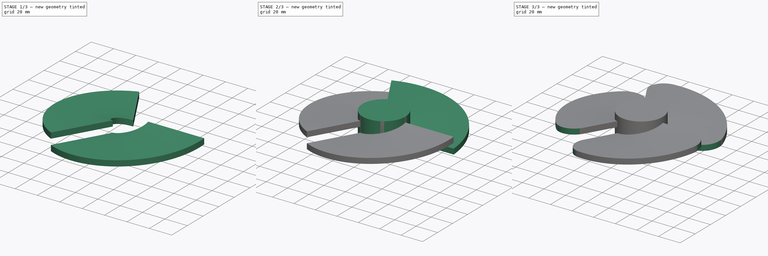
[diagram: build sequence overview — one tinted view per stage of 3, left to right]
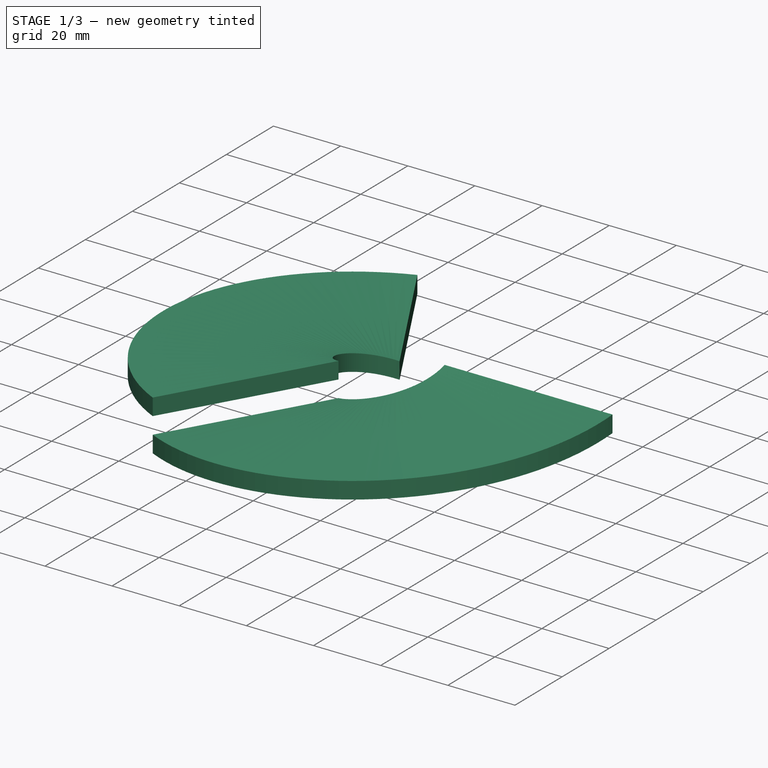
[diagram: stage 1 of 3 — iso view after this stage's code; geometry added in this stage tinted green]
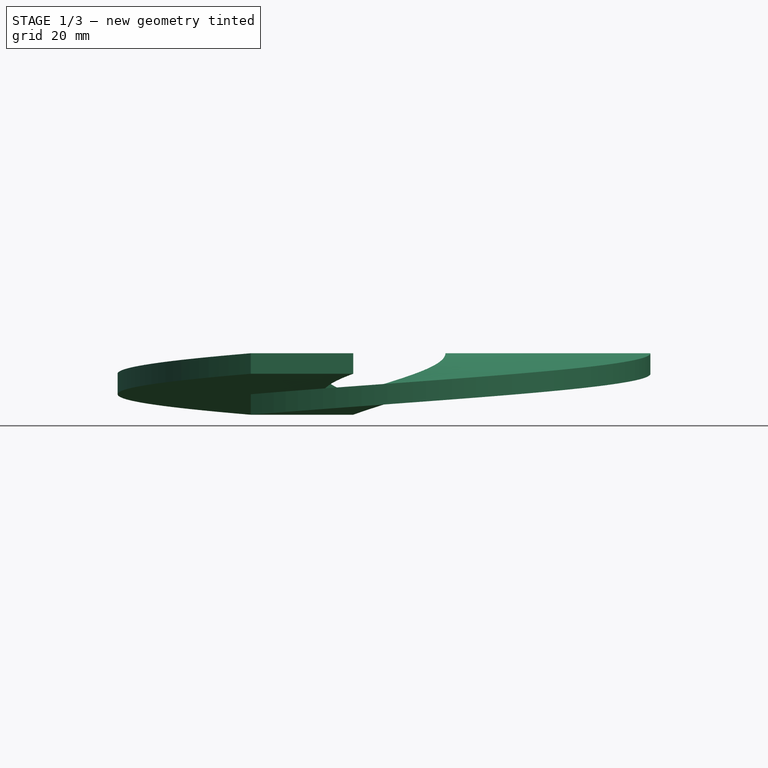
[diagram: stage 1 of 3 — front view after this stage's code; geometry added in this stage tinted green]
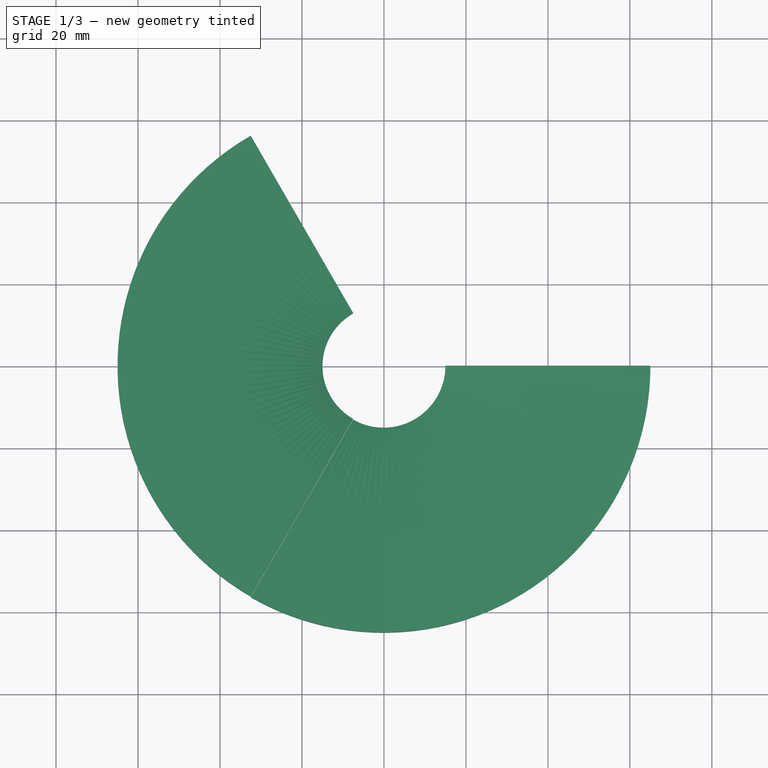
[diagram: stage 1 of 3 — top view after this stage's code; geometry added in this stage tinted green]
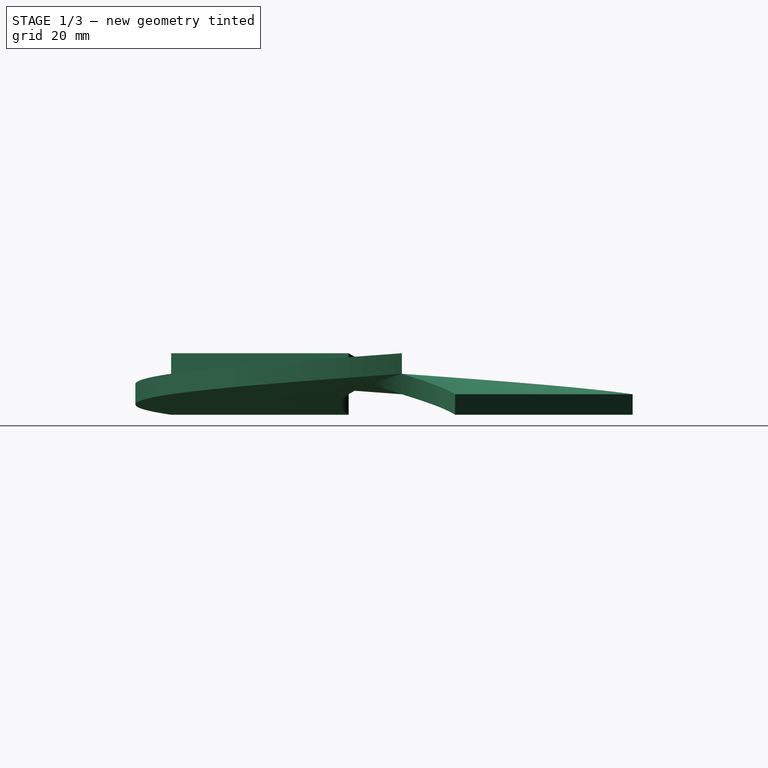
[diagram: stage 1 of 3 — right view after this stage's code; geometry added in this stage tinted green]
FCSTD DOCUMENT  (FreeCAD 0.16R6700 (Git))
Label: Aula07 - Helice
License: FreeArt
LicenseURL: http://artlibre.org/licence/lal
objects: Part::Helix×3, Sketcher::SketchObject×3, Part::Sweep×3, Part::Cylinder×1, Part::MultiFuse×1, PartDesign::Fillet×1
note: 12 computed .brp shape members not serialized (recipe doc carries the construction recipe); baked Part::Feature solids carry a one-line shape summary decoded from their .brp

FEATURE [Part::Helix] Helix001
  Angle = 0
  Height = 10
  LocalCoord = 0
  Pitch = 30
  Placement = pos=(0,0,0) rot=(0,0,1;2.0944rad)
  Radius = 25
  Style = 1
FEATURE [Part::Helix] Helix002
  Angle = 0
  Height = 10
  LocalCoord = 0
  Pitch = 30
  Placement = pos=(0,0,0) rot=(0,0,-1;2.0944rad)
  Radius = 25
  Style = 1
FEATURE [Sketcher::SketchObject] Sketch001
  Placement = pos=(0,0,0) rot=(0.377964,0.654654,0.654654;2.41886rad)
  sketch-geometry (4):
    g0: LineSegment StartX=15 StartY=10 StartZ=0 EndX=65 EndY=10 EndZ=0
    g1: LineSegment StartX=65 StartY=10 StartZ=0 EndX=65 EndY=15 EndZ=0
    g2: LineSegment StartX=65 StartY=15 StartZ=0 EndX=15 EndY=15 EndZ=0
    g3: LineSegment StartX=15 StartY=15 StartZ=0 EndX=15 EndY=10 EndZ=0
  constraints (12):
    c: Coincident(g0,g1)
    c: Coincident(g1,g2)
    c: Coincident(g2,g3)
    c: Coincident(g3,g0)
    c: Horizontal(g0)
    c: Horizontal(g2)
    c: Vertical(g1)
    c: Vertical(g3)
    c: DistanceX(g-1,g2) = 15
    c: DistanceX(g2,g2) = 50
    c: DistanceY(g1,g1) = 5
    c: DistanceY(g-1,g0) = 10
FEATURE [Sketcher::SketchObject] Sketch002
  Placement = pos=(0,0,0) rot=(0.377964,-0.654654,-0.654654;2.41886rad)
  sketch-geometry (4):
    g0: LineSegment StartX=15 StartY=10 StartZ=0 EndX=65 EndY=10 EndZ=0
    g1: LineSegment StartX=65 StartY=10 StartZ=0 EndX=65 EndY=15 EndZ=0
    g2: LineSegment StartX=65 StartY=15 StartZ=0 EndX=15 EndY=15 EndZ=0
    g3: LineSegment StartX=15 StartY=15 StartZ=0 EndX=15 EndY=10 EndZ=0
  constraints (12):
    c: Coincident(g0,g1)
    c: Coincident(g1,g2)
    c: Coincident(g2,g3)
    c: Coincident(g3,g0)
    c: Horizontal(g0)
    c: Horizontal(g2)
    c: Vertical(g1)
    c: Vertical(g3)
    c: DistanceX(g-1,g2) = 15
    c: DistanceX(g2,g2) = 50
    c: DistanceY(g1,g1) = 5
    c: DistanceY(g-1,g0) = 10
FEATURE [Part::Sweep] Sweep001
  Frenet = true
  Sections = -> [Sketch001]
  Solid = true
  Spine = -> Helix001 [Edge1]
  Transition = 1
FEATURE [Part::Sweep] Sweep002
  Frenet = true
  Sections = -> [Sketch002]
  Solid = true
  Spine = -> Helix002 [Edge1]
  Transition = 1
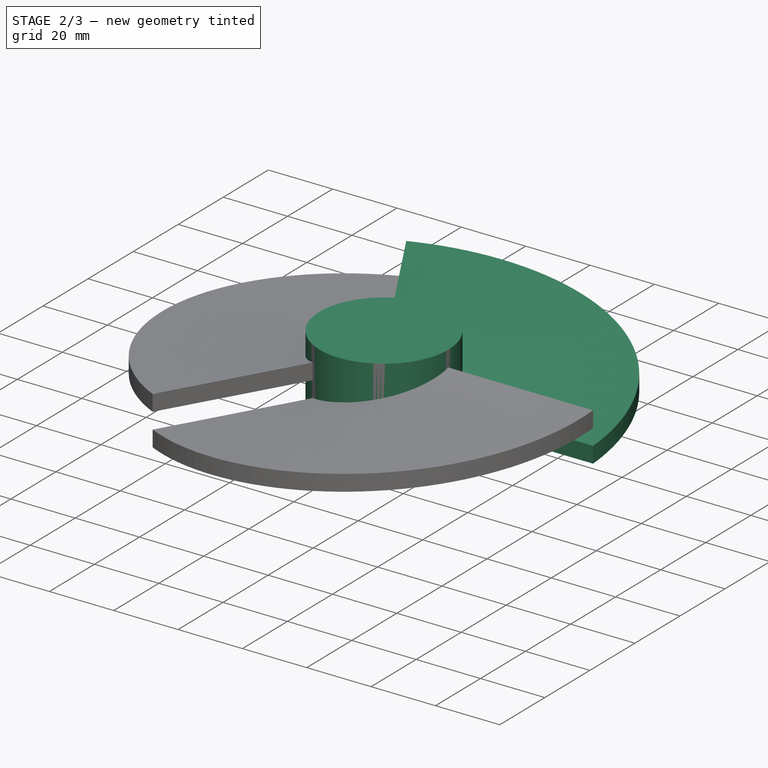
[diagram: stage 2 of 3 — iso view after this stage's code; geometry added in this stage tinted green]
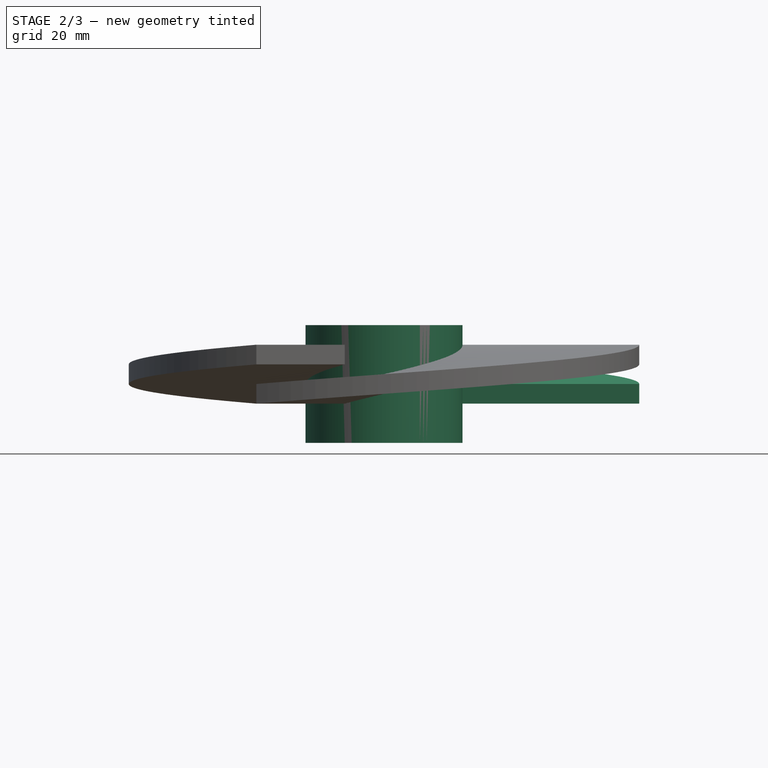
[diagram: stage 2 of 3 — front view after this stage's code; geometry added in this stage tinted green]
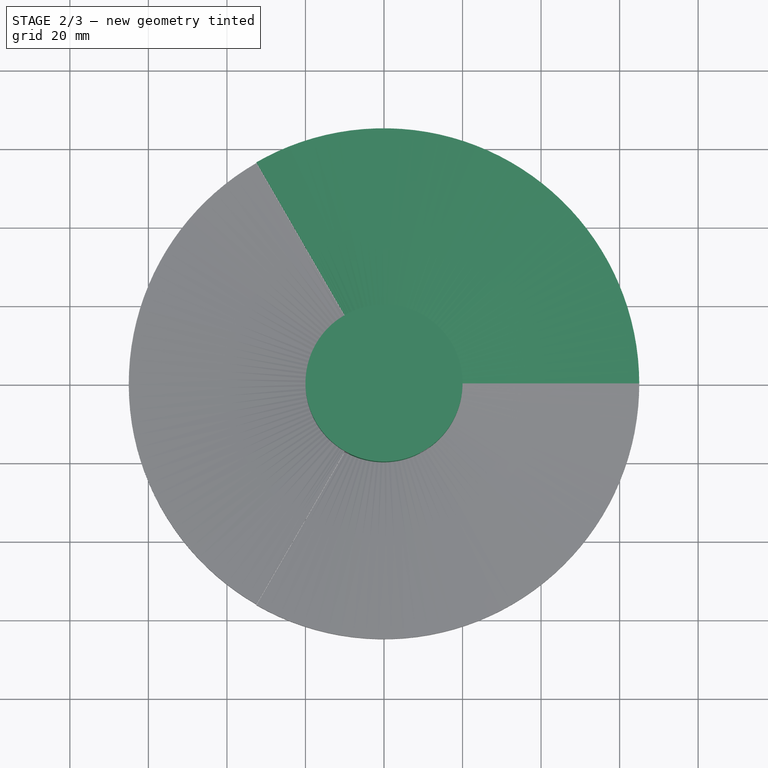
[diagram: stage 2 of 3 — top view after this stage's code; geometry added in this stage tinted green]
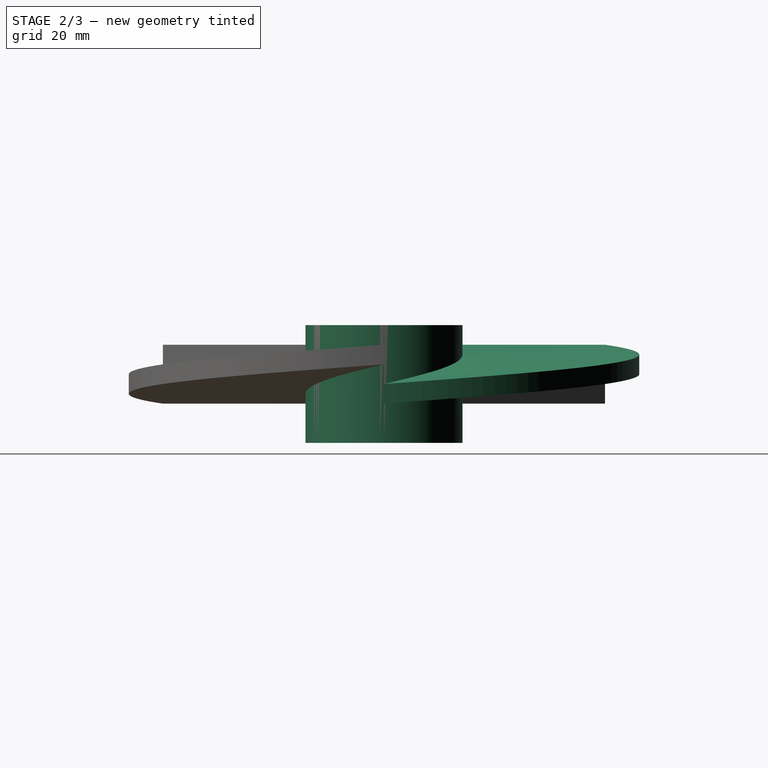
[diagram: stage 2 of 3 — right view after this stage's code; geometry added in this stage tinted green]
FEATURE [Part::Cylinder] Cylinder
  Angle = 360
  Height = 30
  Radius = 20
FEATURE [Part::Helix] Helix
  Angle = 0
  Height = 10
  LocalCoord = 0
  Pitch = 30
  Radius = 25
  Style = 1
FEATURE [Sketcher::SketchObject] Sketch
  Placement = pos=(0,0,0) rot=(1,0,0;1.5708rad)
  sketch-geometry (4):
    g0: LineSegment StartX=15 StartY=10 StartZ=0 EndX=65 EndY=10 EndZ=0
    g1: LineSegment StartX=65 StartY=10 StartZ=0 EndX=65 EndY=15 EndZ=0
    g2: LineSegment StartX=65 StartY=15 StartZ=0 EndX=15 EndY=15 EndZ=0
    g3: LineSegment StartX=15 StartY=15 StartZ=0 EndX=15 EndY=10 EndZ=0
  constraints (12):
    c: Coincident(g0,g1)
    c: Coincident(g1,g2)
    c: Coincident(g2,g3)
    c: Coincident(g3,g0)
    c: Horizontal(g0)
    c: Horizontal(g2)
    c: Vertical(g1)
    c: Vertical(g3)
    c: DistanceX(g-1,g2) = 15
    c: DistanceX(g2,g2) = 50
    c: DistanceY(g1,g1) = 5
    c: DistanceY(g-1,g0) = 10
FEATURE [Part::Sweep] Sweep
  Frenet = true
  Sections = -> [Sketch]
  Solid = true
  Spine = -> Helix [Edge1]
  Transition = 1
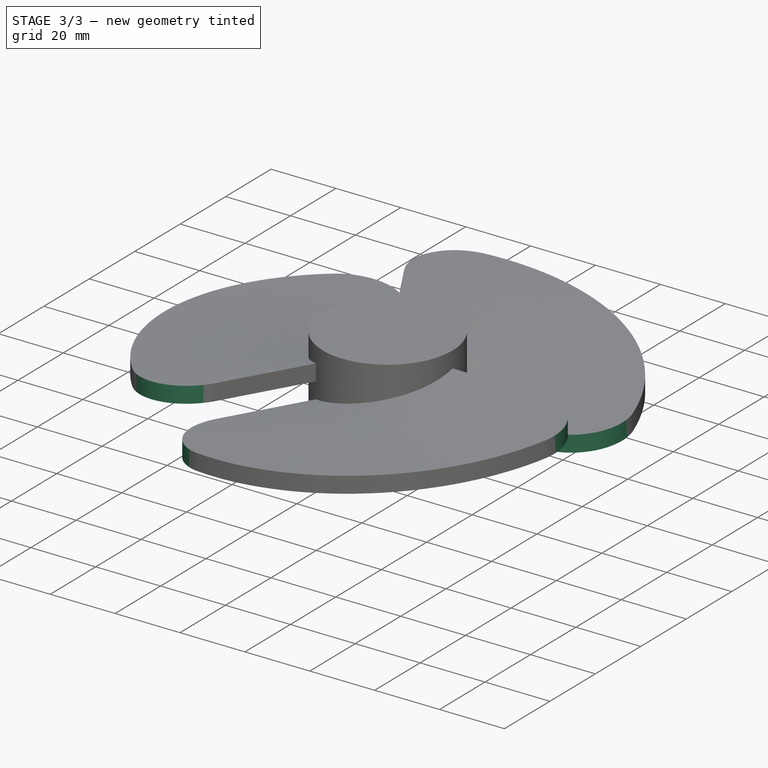
[diagram: stage 3 of 3 — iso view after this stage's code; geometry added in this stage tinted green]
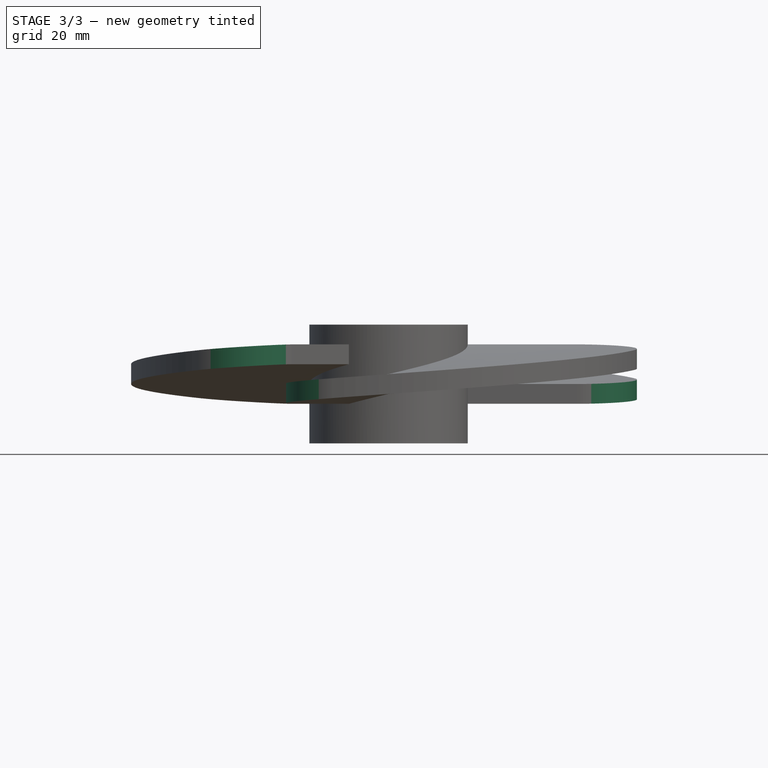
[diagram: stage 3 of 3 — front view after this stage's code; geometry added in this stage tinted green]
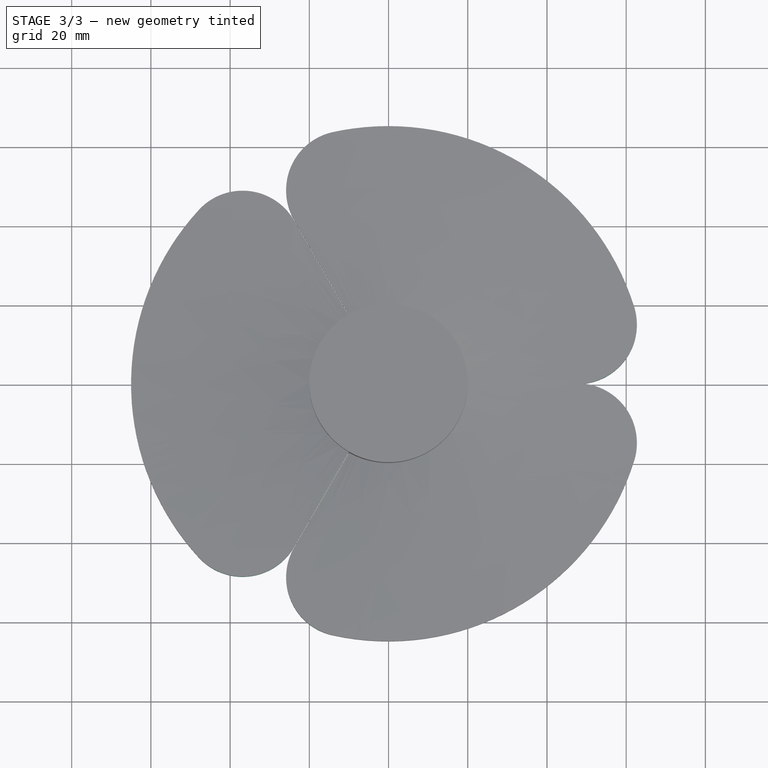
[diagram: stage 3 of 3 — top view after this stage's code; geometry added in this stage tinted green]
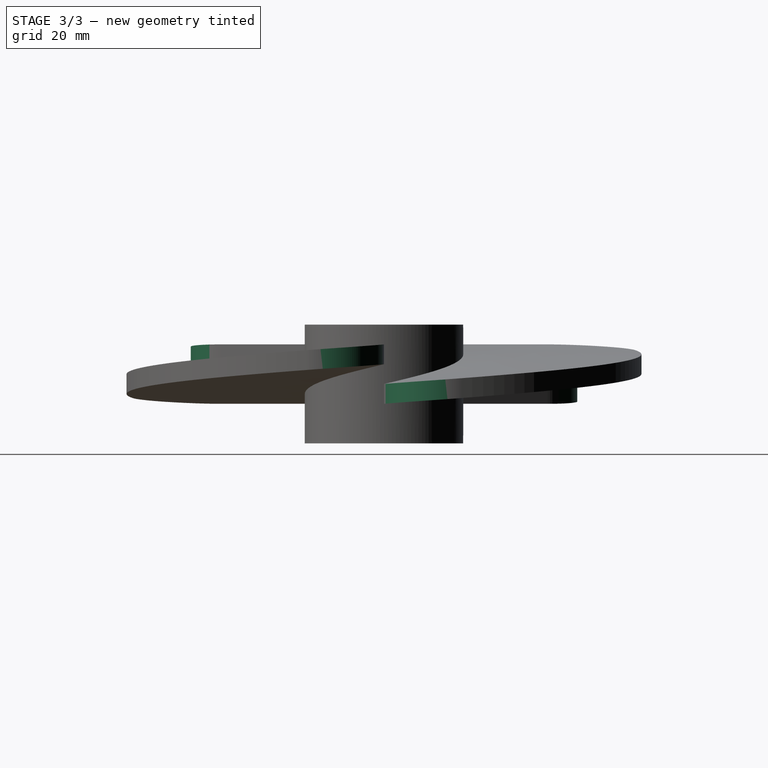
[diagram: stage 3 of 3 — right view after this stage's code; geometry added in this stage tinted green]
FEATURE [Part::MultiFuse] Fusion
  Shapes = -> [Sweep002,Sweep001,Sweep,Cylinder]
FEATURE [PartDesign::Fillet] Fillet
  Base = -> Fusion [Edge29,Edge18,Edge23,Edge40,Edge36,Edge32]
  Radius = 15
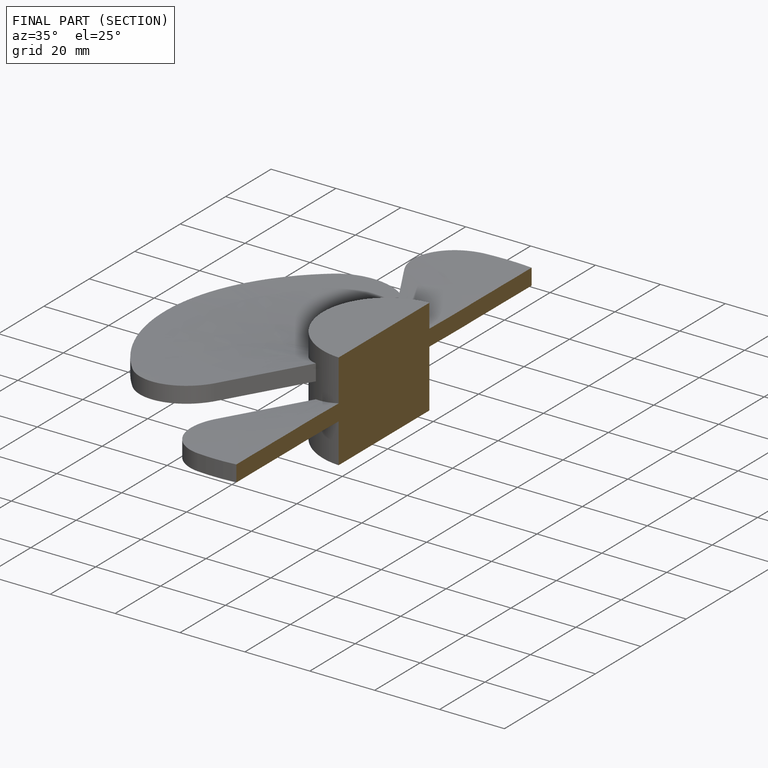
[diagram: finished part — half-section view (interior)]
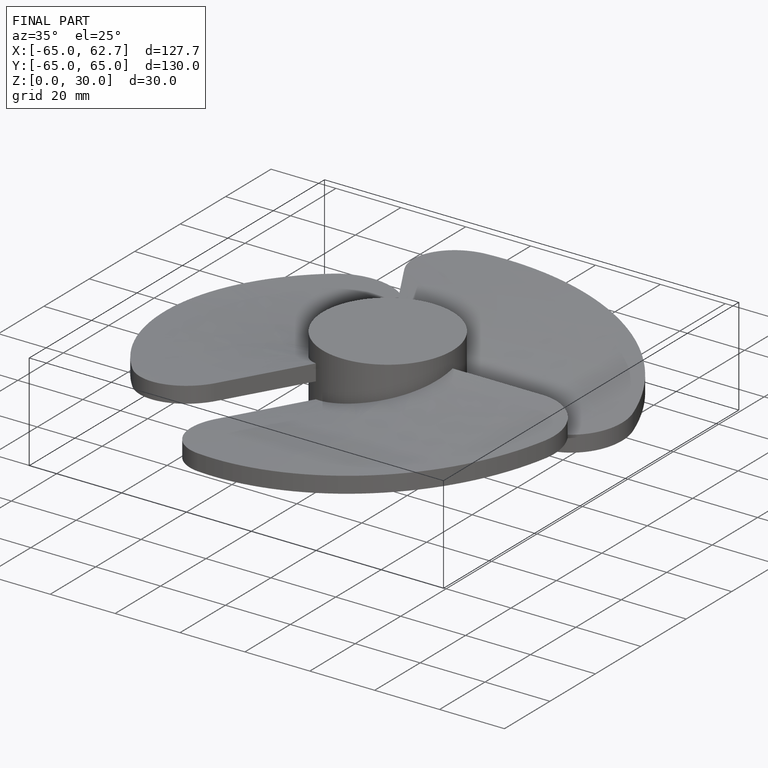
[diagram: finished part — iso view with bounding-box wireframe]
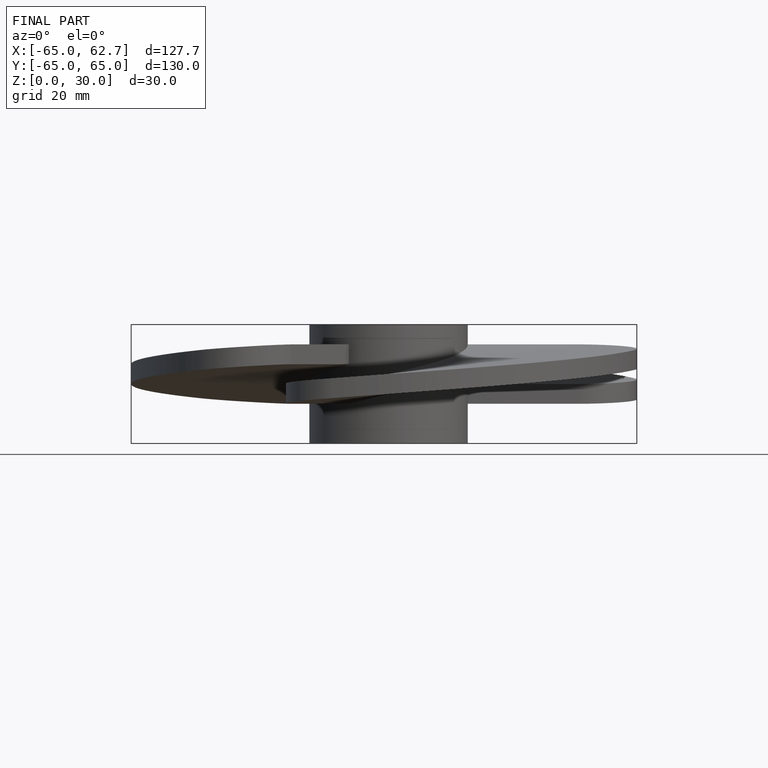
[diagram: finished part — front view with bounding-box wireframe]
